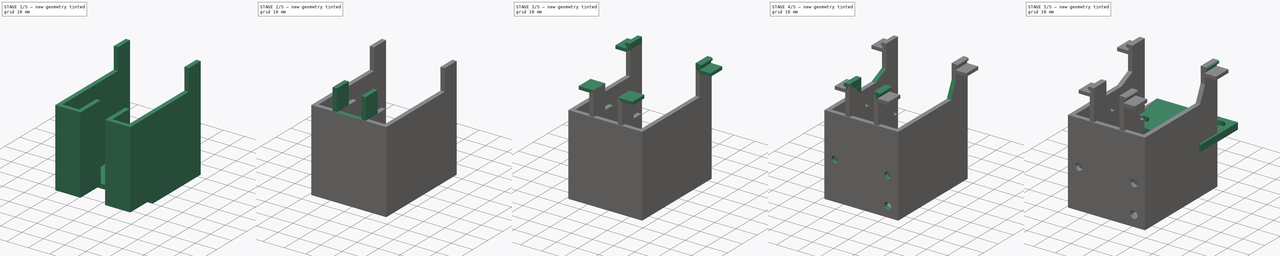
[diagram: build sequence overview — one tinted view per stage of 5, left to right]
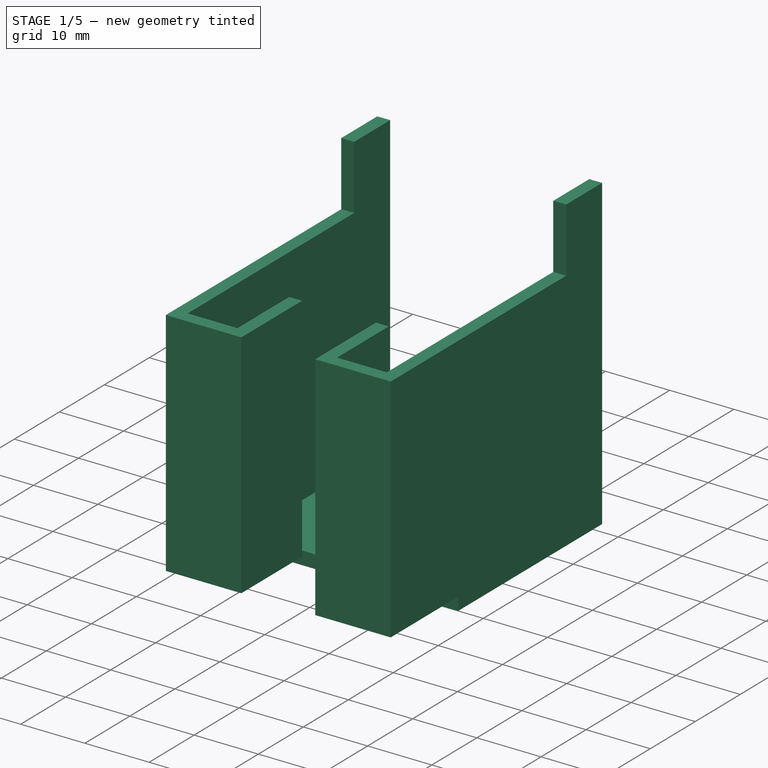
[diagram: stage 1 of 5 — iso view after this stage's code; geometry added in this stage tinted green]
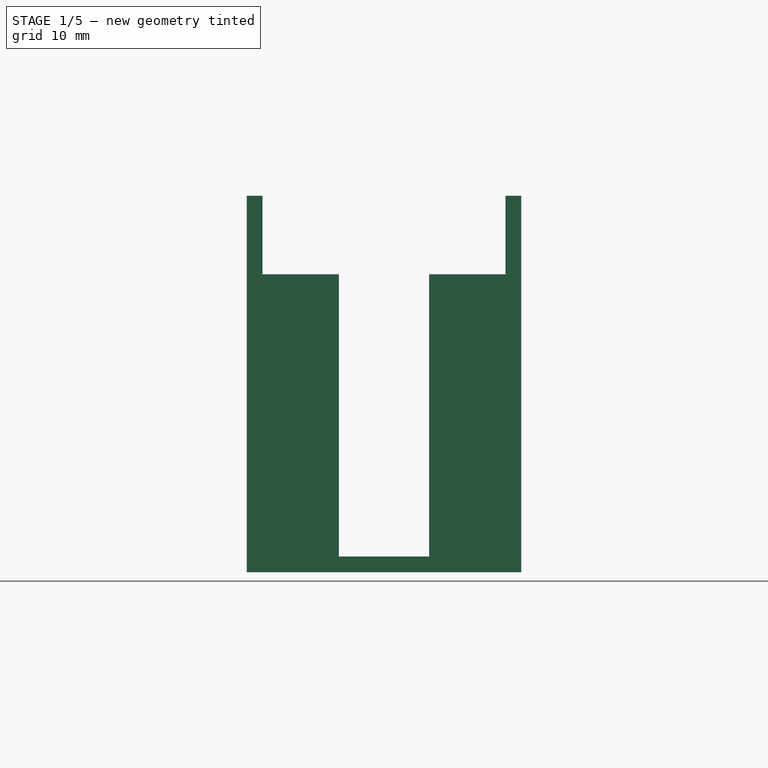
[diagram: stage 1 of 5 — front view after this stage's code; geometry added in this stage tinted green]
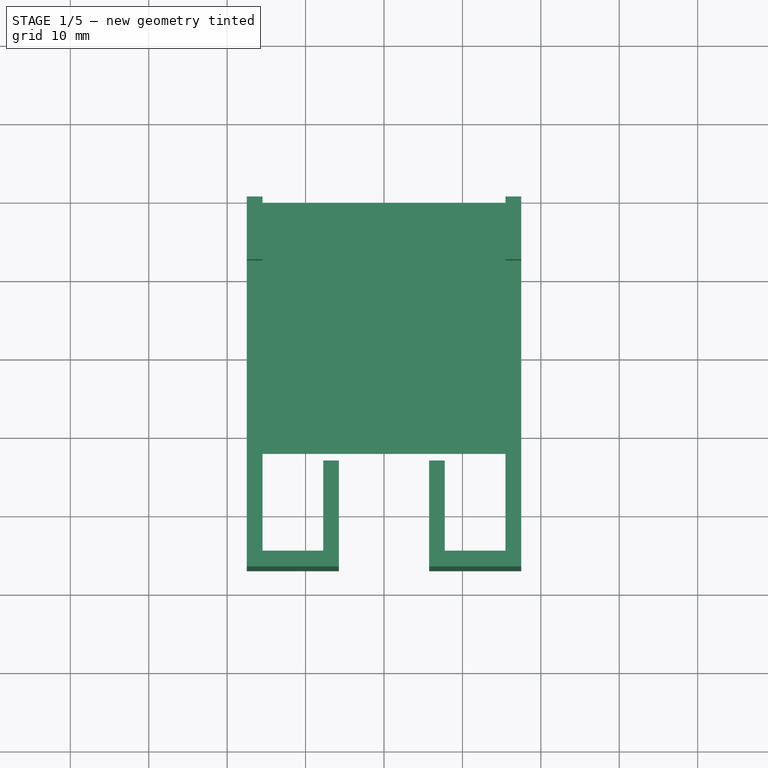
[diagram: stage 1 of 5 — top view after this stage's code; geometry added in this stage tinted green]
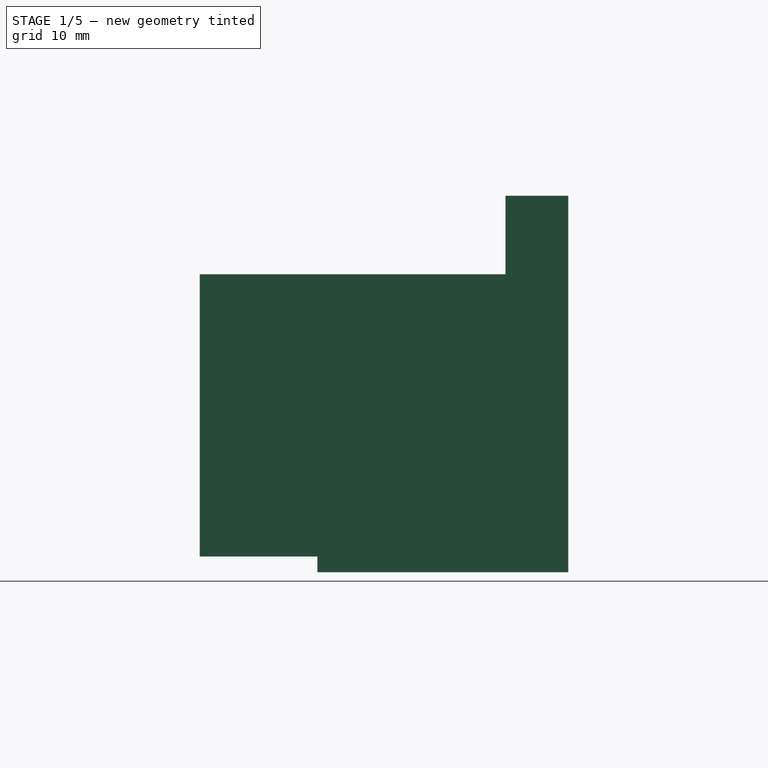
[diagram: stage 1 of 5 — right view after this stage's code; geometry added in this stage tinted green]
FCSTD DOCUMENT  (FreeCAD 1.0R39285 (Git))
Label: Адаптер для датчика
License: All rights reserved
LicenseURL: https://en.wikipedia.org/wiki/All_rights_reserved
objects: Sketcher::SketchObject×17, PartDesign::Pad×14, PartDesign::Body×5, PartDesign::SubShapeBinder×3, PartDesign::Mirrored×2, PartDesign::Pocket×2, PartDesign::Plane×1, PartDesign::Chamfer×1, Measure::MeasureLength×1, App::DocumentObjectGroup×1
note: 98 computed .brp shape members not serialized (recipe doc carries the construction recipe); baked Part::Feature solids carry a one-line shape summary decoded from their .brp

FEATURE [PartDesign::Body] Body001  label="Крепление датчика (Замеры)"
  AllowCompound = false
  Group = -> [Sketch004,Pad,Sketch005,Pad001]
  Origin = -> Origin001
  Placement = pos=(70,0,0) rot=(0,0,1;0rad)
  Tip = -> Pad001
FEATURE [Sketcher::SketchObject] Sketch006  label="Креплене гофры"
  ArcFitTolerance = 1e-06
  AttachmentOffset = pos=(0,0,0) rot=(-1,0,0;3.14159rad)
  AttachmentSupport = -> [XY_Plane002]
  FullyConstrained = true
  MakeInternals = false
  MapMode = 5
  Placement = pos=(0,0,0) rot=(-1,0,0;3.14159rad)
  sketch-geometry (11):
    g0: ArcOfCircle CenterX=0 CenterY=14.5803 CenterZ=0 NormalX=0 NormalY=0 NormalZ=1 AngleXU=0 Radius=5.25 StartAngle=5.78029 EndAngle=9.92767
    g1: LineSegment StartX=-4.6 StartY=12.05 StartZ=0 EndX=-3.4 EndY=10.85 EndZ=0
    g2: LineSegment StartX=4.6 StartY=12.05 StartZ=0 EndX=3.4 EndY=10.85 EndZ=0
    g3: LineSegment StartX=-3.4 StartY=10.85 StartZ=0 EndX=-3.4 EndY=9.5 EndZ=0
    g4: LineSegment StartX=3.4 StartY=10.85 StartZ=0 EndX=3.4 EndY=9.5 EndZ=0
    g5: ArcOfCircle CenterX=-4.6 CenterY=9.5 CenterZ=0 NormalX=0 NormalY=0 NormalZ=1 AngleXU=0 Radius=1.2 StartAngle=4.71239 EndAngle=6.28319
    g6: ArcOfCircle CenterX=4.6 CenterY=9.5 CenterZ=0 NormalX=0 NormalY=0 NormalZ=1 AngleXU=0 Radius=1.2 StartAngle=3.14159 EndAngle=4.71239
    g7: LineSegment [constr] StartX=-4.6 StartY=12.05 StartZ=0 EndX=4.6 EndY=12.05 EndZ=0
    g8: LineSegment StartX=-4.6 StartY=8.3 StartZ=0 EndX=-4.6 EndY=0 EndZ=0
    g9: LineSegment StartX=4.6 StartY=8.3 StartZ=0 EndX=4.6 EndY=0 EndZ=0
    g10: LineSegment StartX=4.6 StartY=0 StartZ=0 EndX=-4.6 EndY=0 EndZ=0
  constraints (32):
    c: Horizontal(g0,g0)
    c: Coincident(g2,g0)
    c: Coincident(g3,g1)
    c: Vertical(g3)
    c: Coincident(g4,g2)
    c: Vertical(g4)
    c: Symmetric(g2,g1,g-2)
    c: PointOnObject(g0,g-2)
    c: Horizontal(g6,g5)
    c: Vertical(g5,g0)
    c: Vertical(g0,g6)
    c: Vertical(g5,g5)
    c: Vertical(g6,g6)
    c: DistanceX(g1,g2) = 6.8
    c: Diameter(g0) = 10.5
    c: DistanceY(g6,g0) = 3.75
    c: Tangent(g5,g3) = 1.5708
    c: Tangent(g6,g4) = -1.5708
    c: Coincident(g1,g0)
    c: Coincident(g7,g0)
    c: Coincident(g7,g0)
    c: Angle(g1,g7) = 0.785398
    c: DistanceX(g1,g1) = 1.2
    c: Coincident(g8,g5)
    c: Vertical(g8)
    c: Coincident(g9,g6)
    c: Vertical(g9)
    c: PointOnObject(g9,g-1)
    c: DistanceY(g8,g8) = 8.3
    c: Equal(g9,g8)
    c: Coincident(g10,g9)
    c: Coincident(g10,g8)
FEATURE [PartDesign::Body] Body002  label="Крепление гофры (Замеры)"
  AllowCompound = false
  Group = -> [Sketch006]
  Origin = -> Origin002
FEATURE [Sketcher::SketchObject] Sketch007
  ArcFitTolerance = 1e-06
  AttachmentSupport = -> [XZ_Plane003]
  FullyConstrained = true
  MakeInternals = false
  MapMode = 5
  Placement = pos=(0,0,0) rot=(1,0,0;1.5708rad)
  sketch-geometry (16):
    g0: LineSegment StartX=-17.5 StartY=19 StartZ=0 EndX=-17.5 EndY=-17 EndZ=0
    g1: LineSegment StartX=-15.5 StartY=-17 StartZ=0 EndX=-15.5 EndY=19 EndZ=0
    g2: LineSegment StartX=-15.5 StartY=19 StartZ=0 EndX=-17.5 EndY=19 EndZ=0
    g3: LineSegment StartX=15.5 StartY=19 StartZ=0 EndX=15.5 EndY=-17 EndZ=0
    g4: LineSegment StartX=17.5 StartY=-17 StartZ=0 EndX=17.5 EndY=19 EndZ=0
    g5: LineSegment StartX=17.5 StartY=19 StartZ=0 EndX=15.5 EndY=19 EndZ=0
    g6: LineSegment StartX=-17.5 StartY=-17 StartZ=0 EndX=-17.5 EndY=-19 EndZ=0
    g7: LineSegment StartX=-17.5 StartY=-19 StartZ=0 EndX=17.5 EndY=-19 EndZ=0
    g8: LineSegment StartX=17.5 StartY=-19 StartZ=0 EndX=17.5 EndY=-17 EndZ=0
    g9: LineSegment StartX=15.5 StartY=-17 StartZ=0 EndX=-15.5 EndY=-17 EndZ=0
    g10: LineSegment StartX=-15.5 StartY=19 StartZ=0 EndX=-15.5 EndY=29 EndZ=0
    g11: LineSegment StartX=-15.5 StartY=29 StartZ=0 EndX=-17.5 EndY=29 EndZ=0
    g12: LineSegment StartX=-17.5 StartY=29 StartZ=0 EndX=-17.5 EndY=19 EndZ=0
    g13: LineSegment StartX=17.5 StartY=19 StartZ=0 EndX=17.5 EndY=29 EndZ=0
    g14: LineSegment StartX=17.5 StartY=29 StartZ=0 EndX=15.5 EndY=29 EndZ=0
    g15: LineSegment StartX=15.5 StartY=29 StartZ=0 EndX=15.5 EndY=19 EndZ=0
  constraints (45):
    c: Coincident(g1,g2)
    c: Coincident(g2,g0)
    c: Vertical(g0)
    c: Vertical(g1)
    c: Horizontal(g2)
    c: Coincident(g4,g5)
    c: Coincident(g5,g3)
    c: Vertical(g3)
    c: Vertical(g4)
    c: Horizontal(g5)
    c: Coincident(g6,g7)
    c: Coincident(g7,g8)
    c: Horizontal(g7)
    c: Vertical(g6)
    c: Vertical(g8)
    c: Horizontal(g9)
    c: Coincident(g9,g1)
    c: Coincident(g9,g3)
    c: Coincident(g4,g8)
    c: Coincident(g6,g0)
    c: Horizontal(g1,g0)
    c: Horizontal(g3,g4)
    c: Equal(g5,g2)
    c: Distance(g9,g7) = 2
    c: DistanceX(g5,g5) = 2
    c: DistanceX(g7,g7) = 35
    c: DistanceY(g0,g0) = 36
    c: Horizontal(g1,g3)
    c: Symmetric(g4,g6,g-1)
    c: Coincident(g1,g10)
    c: Vertical(g10)
    c: Coincident(g10,g11)
    c: Horizontal(g11)
    c: Coincident(g11,g12)
    c: Coincident(g12,g0)
    c: Vertical(g12)
    c: Coincident(g4,g13)
    c: Vertical(g13)
    c: Coincident(g13,g14)
    c: Horizontal(g14)
    c: Coincident(g14,g15)
    c: Coincident(g15,g3)
    c: Vertical(g15)
    c: DistanceY(g10,g10) = 10
    c: Equal(g15,g10)
FEATURE [PartDesign::Pad] Pad002
  Direction = (0,-1,2e-16)
  Length = 32
  Length2 = 10
  Placement = pos=(0,0,0) rot=(1,0,0;1.5708rad)
  Profile = -> Sketch007 [Edge4,Edge16,Edge15,Edge5,Edge6,Edge14,Edge13,Edge8,Edge7,Edge12]
  ReferenceAxis = -> Sketch007 [N_Axis]
  Refine = true
  Suppressed = false
  Type = 0
FEATURE [PartDesign::Pad] Pad003
  BaseFeature = -> Pad002
  Direction = (0,-1,2e-16)
  Length = 8
  Length2 = 10
  Placement = pos=(0,0,0) rot=(1,0,0;1.5708rad)
  Profile = -> Sketch007 [Edge1,Edge16,Edge2,Edge3,Edge12,Edge9,Edge10,Edge11]
  ReferenceAxis = -> Sketch007 [N_Axis]
  Refine = true
  Suppressed = false
  Type = 0
FEATURE [Sketcher::SketchObject] Sketch008
  ArcFitTolerance = 1e-06
  AttachmentSupport = -> [Pad003]
  ExternalGeometry = -> [Pad003]
  FullyConstrained = true
  MakeInternals = false
  MapMode = 5
  Placement = pos=(0,-32,0) rot=(1,0,0;1.5708rad)
  sketch-geometry (4):
    g0: LineSegment StartX=-17.5 StartY=-19 StartZ=0 EndX=17.5 EndY=-19 EndZ=0
    g1: LineSegment StartX=17.5 StartY=-19 StartZ=0 EndX=17.5 EndY=19 EndZ=0
    g2: LineSegment StartX=17.5 StartY=19 StartZ=0 EndX=-17.5 EndY=19 EndZ=0
    g3: LineSegment StartX=-17.5 StartY=19 StartZ=0 EndX=-17.5 EndY=-19 EndZ=0
  constraints (10):
    c: Coincident(g0,g1)
    c: Coincident(g1,g2)
    c: Coincident(g2,g3)
    c: Coincident(g3,g0)
    c: Horizontal(g0)
    c: Horizontal(g2)
    c: Vertical(g1)
    c: Vertical(g3)
    c: Coincident(g0,g-4)
    c: Coincident(g1,g-3)
FEATURE [Sketcher::SketchObject] Sketch011
  ArcFitTolerance = 1e-06
  AttachmentSupport = -> [Pad003]
  ExternalGeometry = -> [Pad003]
  FullyConstrained = true
  MakeInternals = false
  MapMode = 5
  Placement = pos=(0,4.2e-15,19) rot=(0,0,1;3.14159rad)
  sketch-geometry (12):
    g0: LineSegment StartX=-7.75 StartY=45 StartZ=0 EndX=-7.75 EndY=47 EndZ=0
    g1: LineSegment StartX=7.75 StartY=45 StartZ=0 EndX=7.75 EndY=47 EndZ=0
    g2: LineSegment StartX=17.5 StartY=32 StartZ=0 EndX=15.5 EndY=32 EndZ=0
    g3: LineSegment StartX=-15.5 StartY=32 StartZ=0 EndX=-17.5 EndY=32 EndZ=0
    g4: LineSegment StartX=-17.5 StartY=32 StartZ=0 EndX=-17.5 EndY=47 EndZ=0
    g5: LineSegment StartX=-17.5 StartY=47 StartZ=0 EndX=-7.75 EndY=47 EndZ=0
    g6: LineSegment StartX=17.5 StartY=32 StartZ=0 EndX=17.5 EndY=47 EndZ=0
    g7: LineSegment StartX=17.5 StartY=47 StartZ=0 EndX=7.75 EndY=47 EndZ=0
    g8: LineSegment StartX=-15.5 StartY=32 StartZ=0 EndX=-15.5 EndY=45 EndZ=0
    g9: LineSegment StartX=-15.5 StartY=45 StartZ=0 EndX=-7.75 EndY=45 EndZ=0
    g10: LineSegment StartX=15.5 StartY=32 StartZ=0 EndX=15.5 EndY=45 EndZ=0
    g11: LineSegment StartX=15.5 StartY=45 StartZ=0 EndX=7.75 EndY=45 EndZ=0
  constraints (31):
    c: Vertical(g0)
    c: Vertical(g1)
    c: Horizontal(g1,g0)
    c: DistanceX(g0,g1) = 15.5
    c: Coincident(g3,g4)
    c: Vertical(g4)
    c: Coincident(g4,g5)
    c: Coincident(g5,g0)
    c: Coincident(g-4,g6) = -1.5708
    c: Coincident(g6,g7)
    c: Horizontal(g5)
    c: Coincident(g7,g1)
    c: Vertical(g6)
    c: Horizontal(g7)
    c: Coincident(g8,g9)
    c: Coincident(g10,g11)
    c: Vertical(g8)
    c: Horizontal(g9)
    c: Vertical(g10)
    c: Coincident(g11,g1)
    c: Coincident(g0,g9)
    c: Coincident(g8,g3)
    c: Coincident(g2,g10)
    c: Coincident(g6,g2)
    c: Coincident(g3,g-3)
    c: Equal(g3,g0)
    c: Horizontal(g11)
    c: Coincident(g-3,g3)
    c: DistanceY(g8,g8) = 13
    c: Symmetric(g0,g1,g-2)
    c: Coincident(g2,g-4)
FEATURE [PartDesign::Pad] Pad006
  BaseFeature = -> Pad003
  Direction = (0,0,1)
  Length = 36
  Length2 = 10
  Placement = pos=(0,0,0) rot=(1,0,0;1.5708rad)
  Profile = -> Sketch011
  ReferenceAxis = -> Sketch011 [N_Axis]
  Refine = true
  Reversed = true
  Suppressed = false
  Type = 0
FEATURE [PartDesign::Plane] DatumPlane
  AttachmentSupport = -> [Pad006]
  Length = 60.775
  MapMode = 5
  Placement = pos=(0,-45,0) rot=(-1,0,0;1.5708rad)
  ResizeMode = 0
  Width = 68.825
FEATURE [Sketcher::SketchObject] Sketch012
  ArcFitTolerance = 1e-06
  AttachmentSupport = -> [DatumPlane]
  ExternalGeometry = -> [Pad006]
  FullyConstrained = true
  MakeInternals = false
  MapMode = 5
  Placement = pos=(0,-45,0) rot=(-1,0,0;1.5708rad)
  sketch-geometry (8):
    g0: LineSegment StartX=-7.75 StartY=-19 StartZ=0 EndX=-5.75 EndY=-19 EndZ=0
    g1: LineSegment StartX=-5.75 StartY=-19 StartZ=0 EndX=-5.75 EndY=17 EndZ=0
    g2: LineSegment StartX=-5.75 StartY=17 StartZ=0 EndX=-7.75 EndY=17 EndZ=0
    g3: LineSegment StartX=-7.75 StartY=17 StartZ=0 EndX=-7.75 EndY=-19 EndZ=0
    g4: LineSegment StartX=7.75 StartY=17 StartZ=0 EndX=5.75 EndY=17 EndZ=0
    g5: LineSegment StartX=5.75 StartY=17 StartZ=0 EndX=5.75 EndY=-19 EndZ=0
    g6: LineSegment StartX=5.75 StartY=-19 StartZ=0 EndX=7.75 EndY=-19 EndZ=0
    g7: LineSegment StartX=7.75 StartY=-19 StartZ=0 EndX=7.75 EndY=17 EndZ=0
  constraints (20):
    c: Coincident(g0,g1)
    c: Coincident(g1,g2)
    c: Coincident(g2,g3)
    c: Horizontal(g0)
    c: Horizontal(g2)
    c: Vertical(g1)
    c: Coincident(g0,g-3)
    c: Coincident(g-3,g2)
    c: DistanceX(g2,g2) = 2
    c: Coincident(g4,g5)
    c: Coincident(g5,g6)
    c: Coincident(g6,g7)
    c: Coincident(g7,g4)
    c: Horizontal(g4)
    c: Horizontal(g6)
    c: Vertical(g5)
    c: Coincident(g4,g-4)
    c: Coincident(g-4,g6)
    c: Equal(g6,g0)
    c: Coincident(g3,g0)
FEATURE [PartDesign::Pad] Pad007
  BaseFeature = -> Pad006
  Direction = (0,1,2e-16)
  Length = 11.5
  Length2 = 2
  Placement = pos=(0,0,0) rot=(1,0,0;1.5708rad)
  Profile = -> Sketch012
  ReferenceAxis = -> Sketch012 [N_Axis]
  Refine = true
  Suppressed = false
  Type = 4
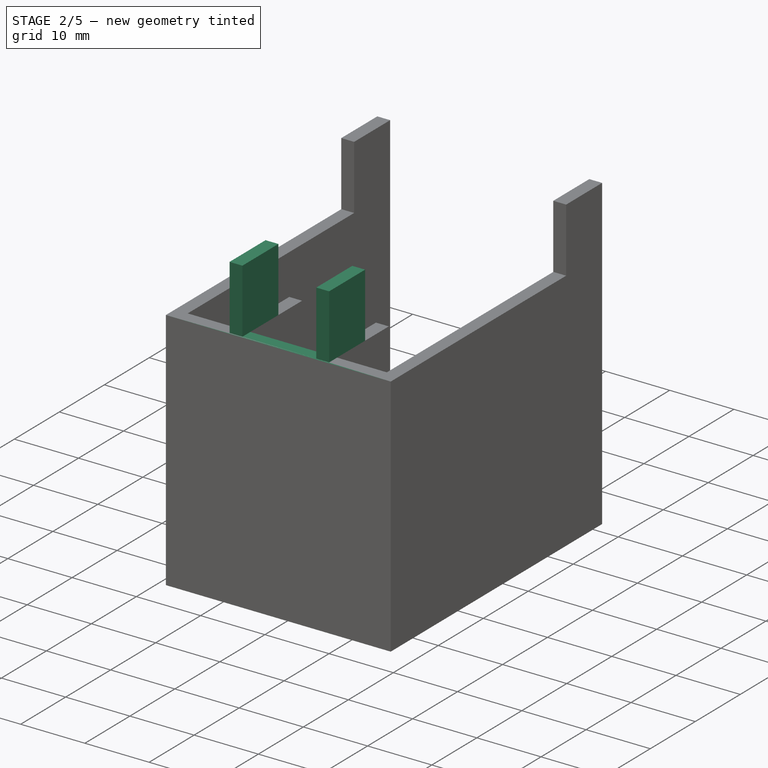
[diagram: stage 2 of 5 — iso view after this stage's code; geometry added in this stage tinted green]
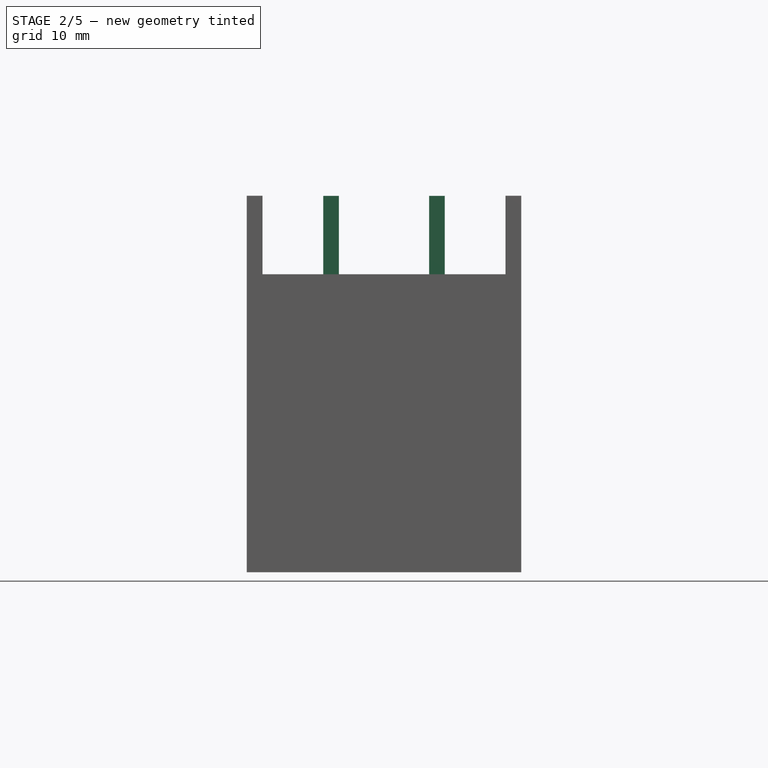
[diagram: stage 2 of 5 — front view after this stage's code; geometry added in this stage tinted green]
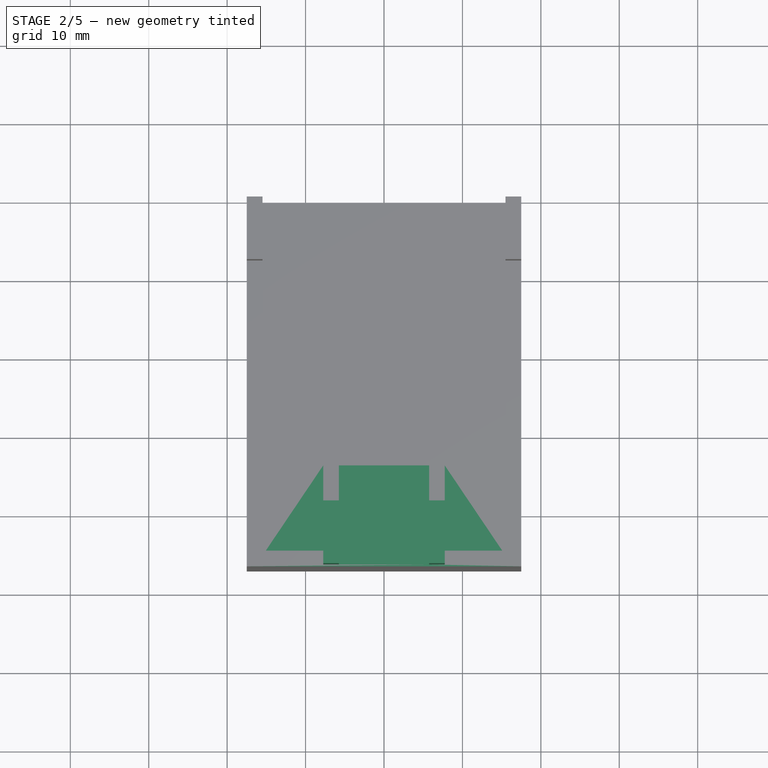
[diagram: stage 2 of 5 — top view after this stage's code; geometry added in this stage tinted green]
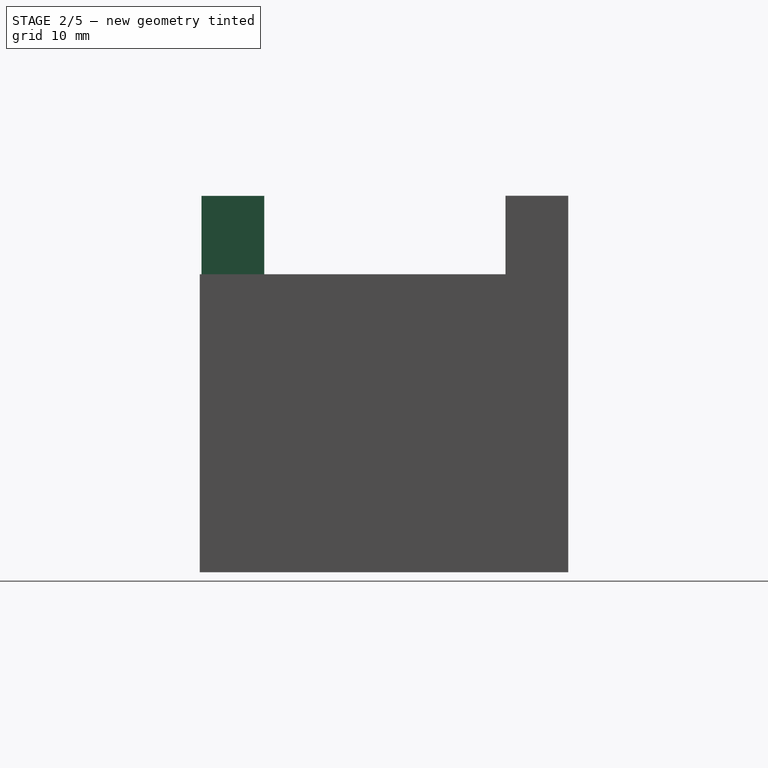
[diagram: stage 2 of 5 — right view after this stage's code; geometry added in this stage tinted green]
FEATURE [Sketcher::SketchObject] Sketch013
  ArcFitTolerance = 1e-06
  AttachmentSupport = -> [Pad007]
  ExternalGeometry = -> [Pad007]
  FullyConstrained = true
  MakeInternals = false
  MapMode = 5
  Placement = pos=(0,1.6e-15,19) rot=(0,0,1;3.14159rad)
  sketch-geometry (4):
    g0: LineSegment StartX=-5.75 StartY=47 StartZ=0 EndX=-5.75 EndY=45 EndZ=0
    g1: LineSegment StartX=-5.75 StartY=45 StartZ=0 EndX=5.75 EndY=45 EndZ=0
    g2: LineSegment StartX=5.75 StartY=45 StartZ=0 EndX=5.75 EndY=47 EndZ=0
    g3: LineSegment StartX=5.75 StartY=47 StartZ=0 EndX=-5.75 EndY=47 EndZ=0
  constraints (10):
    c: Coincident(g0,g1)
    c: Coincident(g1,g2)
    c: Coincident(g2,g3)
    c: Coincident(g3,g0)
    c: Vertical(g0)
    c: Vertical(g2)
    c: Horizontal(g1)
    c: Coincident(g0,g-4)
    c: Horizontal(g0,g-5)
    c: Coincident(g2,g-3)
FEATURE [PartDesign::Pad] Pad008
  BaseFeature = -> Pad007
  Direction = (0,0,1)
  Length = 10
  Length2 = 10
  Placement = pos=(0,0,0) rot=(1,0,0;1.5708rad)
  Profile = -> Sketch013
  ReferenceAxis = -> Sketch013 [N_Axis]
  Refine = true
  Suppressed = false
  Type = 3
  UpToFace = -> Pad007 [Face22]
FEATURE [PartDesign::Pad] Pad009
  BaseFeature = -> Pad008
  Direction = (0,-1,0)
  Length = 15
  Length2 = 10
  Placement = pos=(0,0,0) rot=(1,0,0;1.5708rad)
  Profile = -> Pad008 [Face10]
  Refine = true
  Suppressed = false
  Type = 0
FEATURE [Sketcher::SketchObject] Sketch014
  ArcFitTolerance = 1e-06
  AttachmentSupport = -> [Pad009]
  ExternalGeometry = -> [Pad009]
  FullyConstrained = true
  MakeInternals = false
  MapMode = 5
  Placement = pos=(7.75,0,4e-16) rot=(0.707107,0,0.707107;3.14159rad)
  sketch-geometry (4):
    g0: LineSegment StartX=28.9949 StartY=46.765 StartZ=0 EndX=14.4949 EndY=46.765 EndZ=0
    g1: LineSegment StartX=14.4949 StartY=46.765 StartZ=0 EndX=14.4949 EndY=38.765 EndZ=0
    g2: LineSegment StartX=14.4949 StartY=38.765 StartZ=0 EndX=28.9949 EndY=38.765 EndZ=0
    g3: LineSegment StartX=28.9949 StartY=38.765 StartZ=0 EndX=28.9949 EndY=46.765 EndZ=0
  constraints (11):
    c: Coincident(g0,g1)
    c: Coincident(g1,g2)
    c: Coincident(g2,g3)
    c: Coincident(g3,g0)
    c: Horizontal(g0)
    c: Horizontal(g2)
    c: Vertical(g1)
    c: Vertical(g3)
    c: DistanceX(g0,g0) = 14.5
    c: DistanceY(g1,g1) = 8
    c: Block(g1)
FEATURE [PartDesign::Pad] Pad010
  BaseFeature = -> Pad009
  Direction = (1,0,-2e-16)
  Length = 2
  Length2 = 10
  Placement = pos=(0,0,0) rot=(1,0,0;1.5708rad)
  Profile = -> Sketch014
  ReferenceAxis = -> Sketch014 [N_Axis]
  Refine = true
  Reversed = true
  Suppressed = false
  Type = 3
  UpToFace = -> Pad009 [Face8]
FEATURE [PartDesign::Mirrored] Mirrored
  BaseFeature = -> Pad010
  MirrorPlane = -> YZ_Plane003
  Originals = -> [Pad010]
  Placement = pos=(0,0,0) rot=(1,0,0;1.5708rad)
  Refine = true
  Suppressed = false
  TransformMode = 0
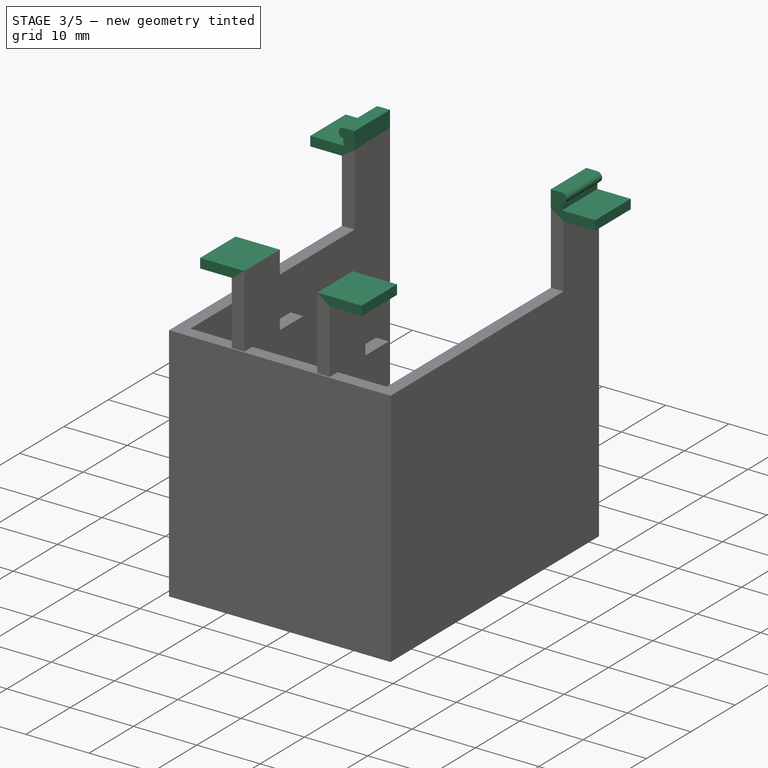
[diagram: stage 3 of 5 — iso view after this stage's code; geometry added in this stage tinted green]
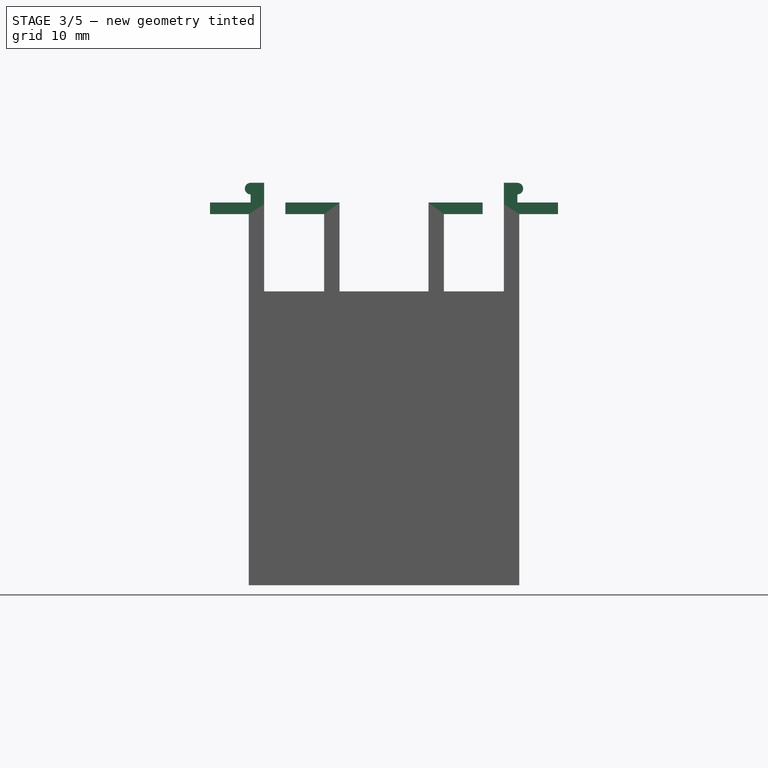
[diagram: stage 3 of 5 — front view after this stage's code; geometry added in this stage tinted green]
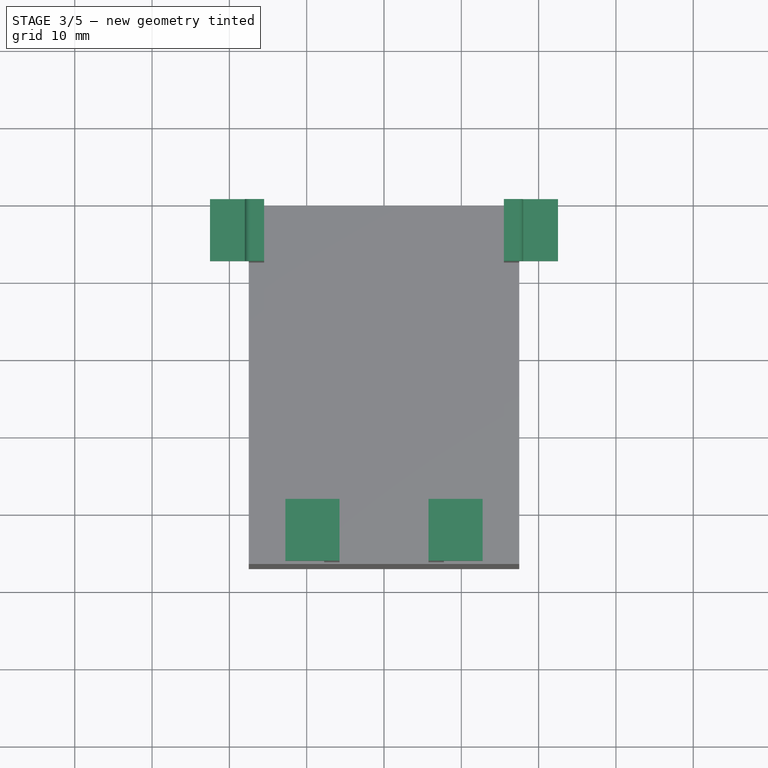
[diagram: stage 3 of 5 — top view after this stage's code; geometry added in this stage tinted green]
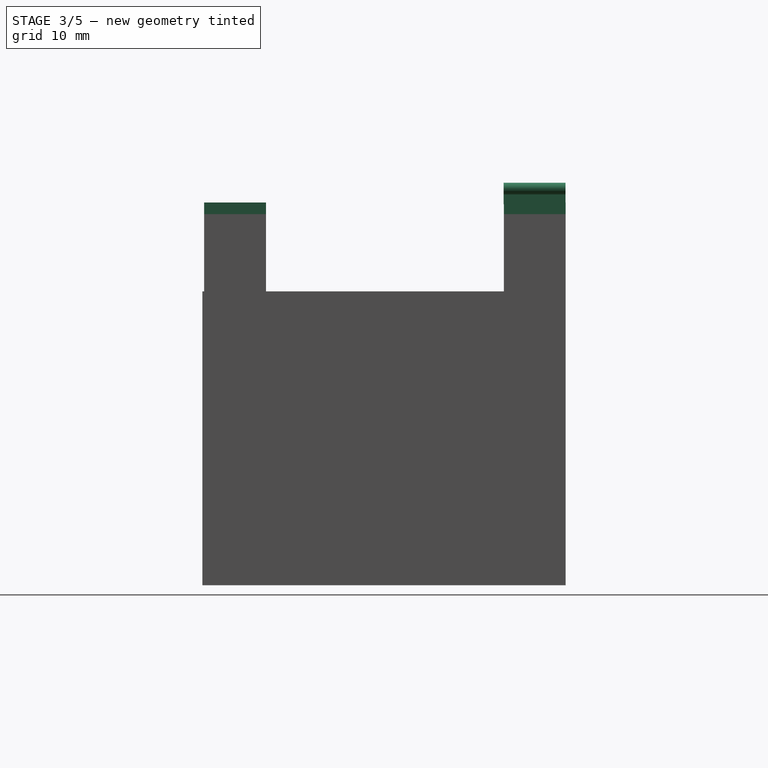
[diagram: stage 3 of 5 — right view after this stage's code; geometry added in this stage tinted green]
FEATURE [Sketcher::SketchObject] Sketch015
  ArcFitTolerance = 1e-06
  AttachmentSupport = -> [Mirrored]
  ExternalGeometry = -> [Mirrored]
  FullyConstrained = true
  MakeInternals = false
  MapMode = 5
  Placement = pos=(0,6.4e-15,29) rot=(0,0,1;3.14159rad)
  sketch-geometry (16):
    g0: LineSegment StartX=-22.5 StartY=4.4e-15 StartZ=0 EndX=-15.5 EndY=4.4e-15 EndZ=0
    g1: LineSegment StartX=-15.5 StartY=4.4e-15 StartZ=0 EndX=-15.5 EndY=8 EndZ=0
    g2: LineSegment StartX=-15.5 StartY=8 StartZ=0 EndX=-22.5 EndY=8 EndZ=0
    g3: LineSegment StartX=-22.5 StartY=8 StartZ=0 EndX=-22.5 EndY=4.4e-15 EndZ=0
    g4: LineSegment StartX=-12.75 StartY=38.765 StartZ=0 EndX=-5.75 EndY=38.765 EndZ=0
    g5: LineSegment StartX=-5.75 StartY=38.765 StartZ=0 EndX=-5.75 EndY=46.765 EndZ=0
    g6: LineSegment StartX=-5.75 StartY=46.765 StartZ=0 EndX=-12.75 EndY=46.765 EndZ=0
    g7: LineSegment StartX=-12.75 StartY=46.765 StartZ=0 EndX=-12.75 EndY=38.765 EndZ=0
    g8: LineSegment StartX=12.75 StartY=46.765 StartZ=0 EndX=5.75 EndY=46.765 EndZ=0
    g9: LineSegment StartX=5.75 StartY=46.765 StartZ=0 EndX=5.75 EndY=38.765 EndZ=0
    g10: LineSegment StartX=5.75 StartY=38.765 StartZ=0 EndX=12.75 EndY=38.765 EndZ=0
    g11: LineSegment StartX=12.75 StartY=38.765 StartZ=0 EndX=12.75 EndY=46.765 EndZ=0
    g12: LineSegment StartX=15.5 StartY=4.4e-15 StartZ=0 EndX=22.5 EndY=4.4e-15 EndZ=0
    g13: LineSegment StartX=22.5 StartY=4.4e-15 StartZ=0 EndX=22.5 EndY=8 EndZ=0
    g14: LineSegment StartX=22.5 StartY=8 StartZ=0 EndX=15.5 EndY=8 EndZ=0
    g15: LineSegment StartX=15.5 StartY=8 StartZ=0 EndX=15.5 EndY=4.4e-15 EndZ=0
  constraints (44):
    c: Coincident(g0,g1)
    c: Coincident(g1,g2)
    c: Coincident(g2,g3)
    c: Coincident(g3,g0)
    c: Horizontal(g0)
    c: Horizontal(g2)
    c: Vertical(g1)
    c: Vertical(g3)
    c: Coincident(g4,g5)
    c: Coincident(g5,g6)
    c: Coincident(g6,g7)
    c: Coincident(g7,g4)
    c: Horizontal(g4)
    c: Horizontal(g6)
    c: Vertical(g5)
    c: Vertical(g7)
    c: Coincident(g8,g9)
    c: Coincident(g9,g10)
    c: Coincident(g10,g11)
    c: Coincident(g11,g8)
    c: Horizontal(g8)
    c: Horizontal(g10)
    c: Vertical(g9)
    c: Vertical(g11)
    c: Coincident(g12,g13)
    c: Coincident(g14,g15)
    c: Coincident(g15,g12)
    c: Horizontal(g12)
    c: Horizontal(g14)
    c: Vertical(g13)
    c: Vertical(g15)
    c: Equal(g12,g8)
    c: Equal(g8,g4)
    c: Equal(g4,g0)
    c: Coincident(g0,g-6)
    c: Coincident(g4,g-3)
    c: Coincident(g9,g-4)
    c: Coincident(g13,g14)
    c: Coincident(g12,g-5)
    c: DistanceX(g0,g0) = 7
    c: DistanceY(g1,g1) = 8
    c: Equal(g1,g15)
    c: Equal(g15,g9)
    c: Equal(g9,g5)
FEATURE [PartDesign::Pad] Pad011
  BaseFeature = -> Mirrored
  Direction = (0,0,1)
  Length = 1.5
  Length2 = 10
  Placement = pos=(0,0,0) rot=(1,0,0;1.5708rad)
  Profile = -> Sketch015
  ReferenceAxis = -> Sketch015 [N_Axis]
  Refine = true
  Suppressed = false
  Type = 0
FEATURE [Sketcher::SketchObject] Sketch016
  ArcFitTolerance = 1e-06
  AttachmentSupport = -> [Pad011]
  ExternalGeometry = -> [Pad011]
  FullyConstrained = true
  MakeInternals = false
  MapMode = 5
  Placement = pos=(-1.29e-14,0,28.9949) rot=(0,0,1;3.14159rad)
  sketch-geometry (8):
    g0: LineSegment StartX=-5.75 StartY=38.765 StartZ=0 EndX=-5.75 EndY=46.765 EndZ=0
    g1: LineSegment StartX=-5.75 StartY=46.765 StartZ=0 EndX=-12.75 EndY=46.765 EndZ=0
    g2: LineSegment StartX=-12.75 StartY=46.765 StartZ=0 EndX=-12.75 EndY=38.765 EndZ=0
    g3: LineSegment StartX=-12.75 StartY=38.765 StartZ=0 EndX=-5.75 EndY=38.765 EndZ=0
    g4: LineSegment StartX=5.75 StartY=38.765 StartZ=0 EndX=12.75 EndY=38.765 EndZ=0
    g5: LineSegment StartX=12.75 StartY=38.765 StartZ=0 EndX=12.75 EndY=46.765 EndZ=0
    g6: LineSegment StartX=12.75 StartY=46.765 StartZ=0 EndX=5.75 EndY=46.765 EndZ=0
    g7: LineSegment StartX=5.75 StartY=46.765 StartZ=0 EndX=5.75 EndY=38.765 EndZ=0
  constraints (22):
    c: Coincident(g0,g1)
    c: Coincident(g1,g2)
    c: Coincident(g2,g3)
    c: Coincident(g3,g0)
    c: Vertical(g0)
    c: Vertical(g2)
    c: Horizontal(g1)
    c: Horizontal(g3)
    c: Coincident(g0,g-3)
    c: Coincident(g4,g5)
    c: Coincident(g5,g6)
    c: Coincident(g6,g7)
    c: Coincident(g7,g4)
    c: Horizontal(g4)
    c: Horizontal(g6)
    c: Vertical(g5)
    c: Vertical(g7)
    c: Coincident(g4,g-4)
    c: DistanceX(g4,g4) = 7
    c: DistanceY(g5,g5) = 8
    c: Equal(g5,g0)
    c: Equal(g4,g3)
FEATURE [PartDesign::Pad] Pad012
  BaseFeature = -> Pad011
  Direction = (0,0,1)
  Length = 1.5
  Length2 = 10
  Placement = pos=(0,0,0) rot=(1,0,0;1.5708rad)
  Profile = -> Sketch016
  ReferenceAxis = -> Sketch016 [N_Axis]
  Refine = true
  Suppressed = false
  Type = 0
FEATURE [PartDesign::SubShapeBinder] Binder
  BindCopyOnChange = 0
  BindMode = 0
  ClaimChildren = false
  Context = -> Body003 [Binder.]
  Fuse = false
  MakeFace = true
  OffsetFill = false
  OffsetIntersection = false
  OffsetJoinType = 0
  OffsetOpenResult = false
  PartialLoad = false
  Placement = pos=(0,0,4.3) rot=(0,0,1;0rad)
  Refine = true
  Relative = true
  Support = -> [Body[Sketch003.]]
  _Version = 2
FEATURE [PartDesign::Pad] Pad013
  BaseFeature = -> Pad012
  Direction = (0,1,-6e-16)
  Length = 8
  Length2 = 10
  Placement = pos=(0,0,0) rot=(1,0,0;1.5708rad)
  Profile = -> Binder
  Refine = true
  Suppressed = false
  Type = 0
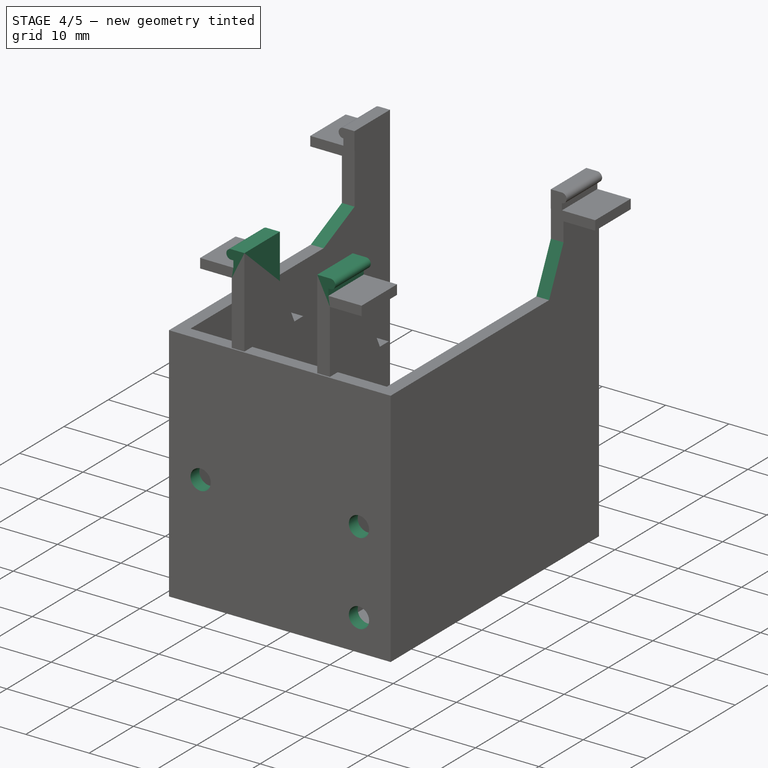
[diagram: stage 4 of 5 — iso view after this stage's code; geometry added in this stage tinted green]
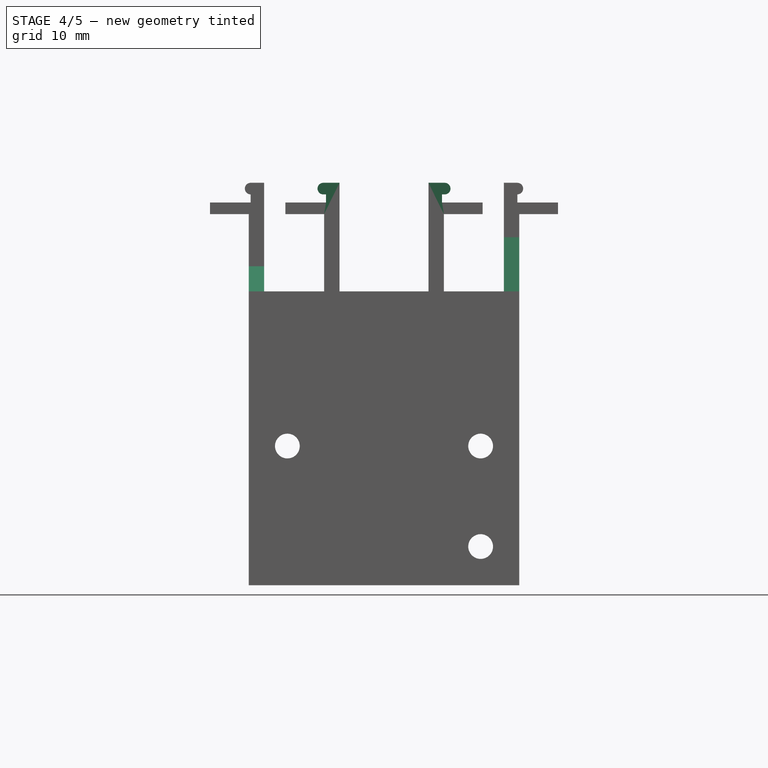
[diagram: stage 4 of 5 — front view after this stage's code; geometry added in this stage tinted green]
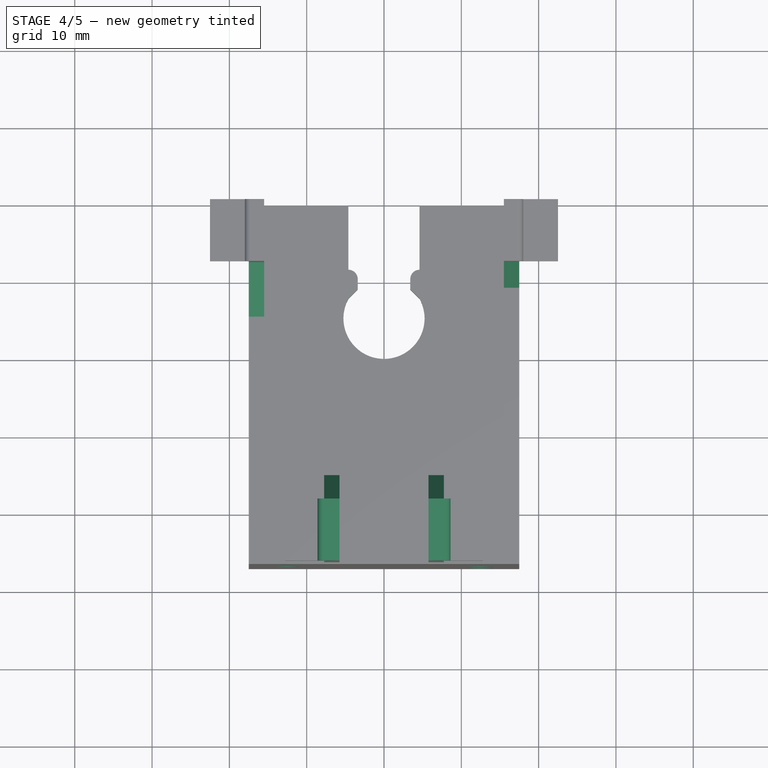
[diagram: stage 4 of 5 — top view after this stage's code; geometry added in this stage tinted green]
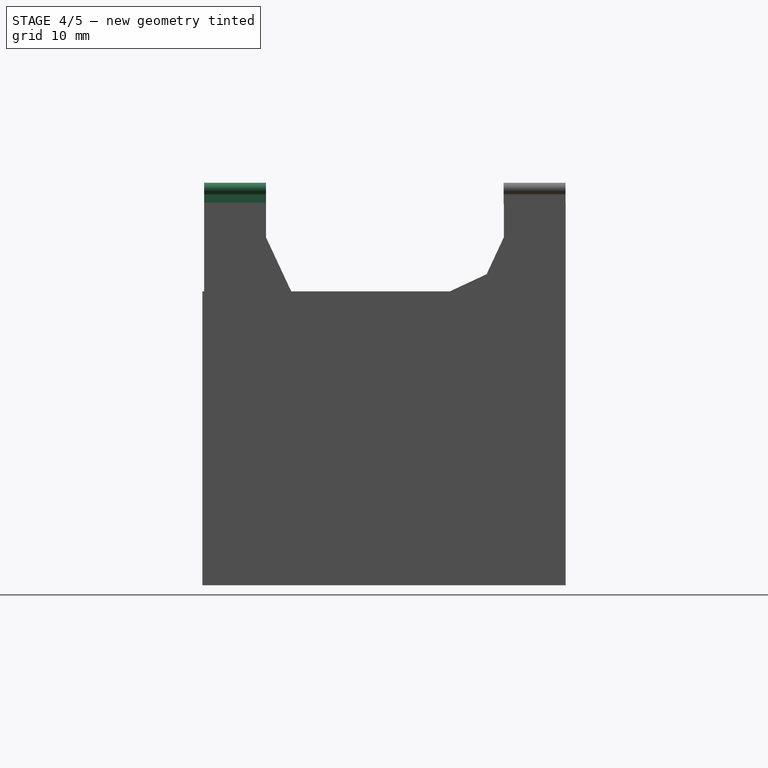
[diagram: stage 4 of 5 — right view after this stage's code; geometry added in this stage tinted green]
FEATURE [PartDesign::SubShapeBinder] Binder001
  BindCopyOnChange = 0
  BindMode = 0
  ClaimChildren = false
  Context = -> Body003 [Binder001.]
  Fuse = false
  MakeFace = true
  OffsetFill = false
  OffsetIntersection = false
  OffsetJoinType = 0
  OffsetOpenResult = false
  PartialLoad = false
  Placement = pos=(0,0,4.3) rot=(0,0,1;0rad)
  Refine = true
  Relative = true
  Support = -> [Body[Sketch002.]]
  _Version = 2
FEATURE [Sketcher::SketchObject] Sketch017
  ArcFitTolerance = 1e-06
  AttachmentSupport = -> [Pad013]
  ExternalGeometry = -> [Binder001]
  FullyConstrained = false
  MakeInternals = false
  MapMode = 5
  Placement = pos=(0,-46.765,1.4e-15) rot=(1,0,0;1.5708rad)
  sketch-geometry (14):
    g0: LineSegment StartX=-7.5 StartY=33.05 StartZ=0 EndX=-5.75 EndY=33.05 EndZ=0
    g1: LineSegment StartX=-5.75 StartY=33.05 StartZ=0 EndX=-5.75 EndY=25.3024 EndZ=0
    g2: LineSegment StartX=-5.75 StartY=25.3024 StartZ=0 EndX=-7.5 EndY=25.3024 EndZ=0
    g3: LineSegment StartX=-7.5 StartY=25.3024 StartZ=0 EndX=-7.5 EndY=31.55 EndZ=0
    g4: LineSegment StartX=7.5 StartY=33.05 StartZ=0 EndX=5.75 EndY=33.05 EndZ=0
    g5: LineSegment StartX=5.75 StartY=33.05 StartZ=0 EndX=5.75 EndY=24.5016 EndZ=0
    g6: LineSegment StartX=5.75 StartY=24.5016 StartZ=0 EndX=7.5 EndY=24.5016 EndZ=0
    g7: LineSegment StartX=7.5 StartY=24.5016 StartZ=0 EndX=7.5 EndY=31.55 EndZ=0
    g8: ArcOfCircle CenterX=7.85 CenterY=32.3 CenterZ=0 NormalX=0 NormalY=0 NormalZ=1 AngleXU=0 Radius=0.75 StartAngle=4.71239 EndAngle=7.85398
    g9: LineSegment StartX=7.85 StartY=31.55 StartZ=0 EndX=7.5 EndY=31.55 EndZ=0
    g10: LineSegment StartX=7.85 StartY=33.05 StartZ=0 EndX=7.5 EndY=33.05 EndZ=0
    g11: ArcOfCircle CenterX=-7.85 CenterY=32.3 CenterZ=0 NormalX=0 NormalY=0 NormalZ=1 AngleXU=0 Radius=0.75 StartAngle=1.5708 EndAngle=4.71239
    g12: LineSegment StartX=-7.5 StartY=33.05 StartZ=0 EndX=-7.85 EndY=33.05 EndZ=0
    g13: LineSegment StartX=-7.5 StartY=31.55 StartZ=0 EndX=-7.85 EndY=31.55 EndZ=0
  constraints (36):
    c: Coincident(g-9,g0)
    c: Horizontal(g0)
    c: Coincident(g0,g1)
    c: Vertical(g1)
    c: Coincident(g4,g5)
    c: Coincident(g2,g1)
    c: PointOnObject(g-10,g1)
    c: Coincident(g2,g3)
    c: Vertical(g3)
    c: Coincident(g7,g6)
    c: Coincident(g5,g6)
    c: Horizontal(g6)
    c: Vertical(g7)
    c: PointOnObject(g-6,g5)
    c: Coincident(g9,g8)
    c: Coincident(g9,g7)
    c: Coincident(g10,g8)
    c: Coincident(g10,g4)
    c: Horizontal(g10)
    c: Horizontal(g9)
    c: Coincident(g-5,g7)
    c: Coincident(g4,g-3)
    c: Vertical(g8,g8)
    c: Vertical(g8,g8)
    c: DistanceX(g10,g10) = 0.35
    c: Coincident(g0,g12)
    c: Coincident(g12,g11)
    c: Coincident(g3,g13)
    c: Coincident(g13,g11)
    c: Horizontal(g12)
    c: Horizontal(g13)
    c: Equal(g12,g10)
    c: Coincident(g-8,g3)
    c: Vertical(g11,g11)
    c: Vertical(g11,g11)
    c: Coincident(g4,g-4)
FEATURE [PartDesign::Pad] Pad014
  BaseFeature = -> Pad013
  Direction = (0,-1,2e-16)
  Length = 8
  Length2 = 10
  Placement = pos=(0,0,0) rot=(1,0,0;1.5708rad)
  Profile = -> Sketch017
  ReferenceAxis = -> Sketch017 [N_Axis]
  Refine = true
  Reversed = true
  Suppressed = false
  Type = 0
FEATURE [PartDesign::SubShapeBinder] Binder002
  BindCopyOnChange = 0
  BindMode = 0
  ClaimChildren = false
  Context = -> Body003 [Binder002.]
  Fuse = false
  MakeFace = true
  OffsetFill = false
  OffsetIntersection = false
  OffsetJoinType = 0
  OffsetOpenResult = false
  PartialLoad = false
  Refine = true
  Relative = true
  Support = -> [Body002[Sketch006.]]
  _Version = 2
FEATURE [PartDesign::Pocket] Pocket
  BaseFeature = -> Pad014
  Direction = (0,0,-1)
  Length = 5
  Length2 = 5
  Placement = pos=(0,0,0) rot=(1,0,0;1.5708rad)
  Profile = -> Binder002
  Refine = true
  Suppressed = false
  Type = 1
FEATURE [PartDesign::Chamfer] Chamfer
  Angle = 25
  Base = -> Pocket [Edge5,Edge26,Edge173,Edge187]
  BaseFeature = -> Pocket
  ChamferType = 2
  FlipDirection = false
  Placement = pos=(0,0,0) rot=(1,0,0;1.5708rad)
  Refine = true
  Size = 7
  Size2 = 1
  SupportTransform = false
  Suppressed = false
  UseAllEdges = false
FEATURE [Sketcher::SketchObject] Sketch018
  ArcFitTolerance = 1e-06
  FullyConstrained = false
  MakeInternals = false
  MapMode = 5
  Placement = pos=(0,-47,-7.5) rot=(-1,0,0;1.5708rad)
  sketch-geometry (3):
    g0: Circle CenterX=12.5 CenterY=-6.5 CenterZ=0 NormalX=0 NormalY=0 NormalZ=1 AngleXU=0 Radius=1.6
    g1: Circle CenterX=12.5 CenterY=6.5 CenterZ=0 NormalX=0 NormalY=0 NormalZ=1 AngleXU=0 Radius=1.6
    g2: Circle CenterX=-12.5 CenterY=-6.5 CenterZ=0 NormalX=0 NormalY=0 NormalZ=1 AngleXU=0 Radius=1.6
  constraints (7):
    c: Equal(g2,g0)
    c: Equal(g0,g1)
    c: Vertical(g1,g0)
    c: Distance(g0,g1) = 9.8
    c: Distance(g0,g2) = 21.8
    c: Diameter(g2) = 3.2
    c: Symmetric(g0,g2,g-2)
FEATURE [PartDesign::Pocket] Pocket001
  BaseFeature = -> Chamfer
  Direction = (0,-1,-2e-16)
  Length = 5
  Length2 = 5
  Placement = pos=(0,0,0) rot=(1,0,0;1.5708rad)
  Profile = -> Sketch018
  ReferenceAxis = -> Sketch018 [N_Axis]
  Refine = true
  Reversed = true
  Suppressed = false
  Type = 0
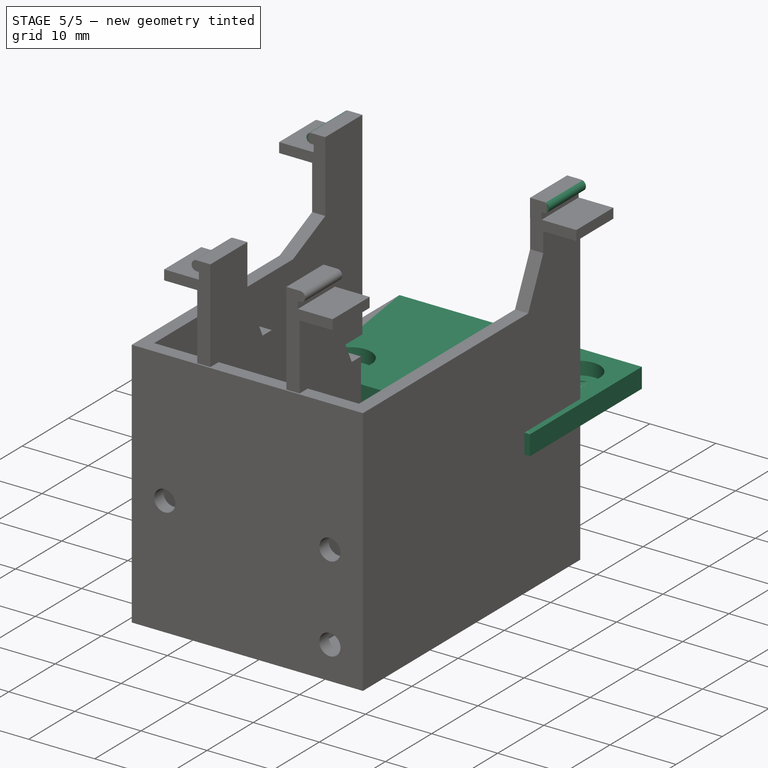
[diagram: stage 5 of 5 — iso view after this stage's code; geometry added in this stage tinted green]
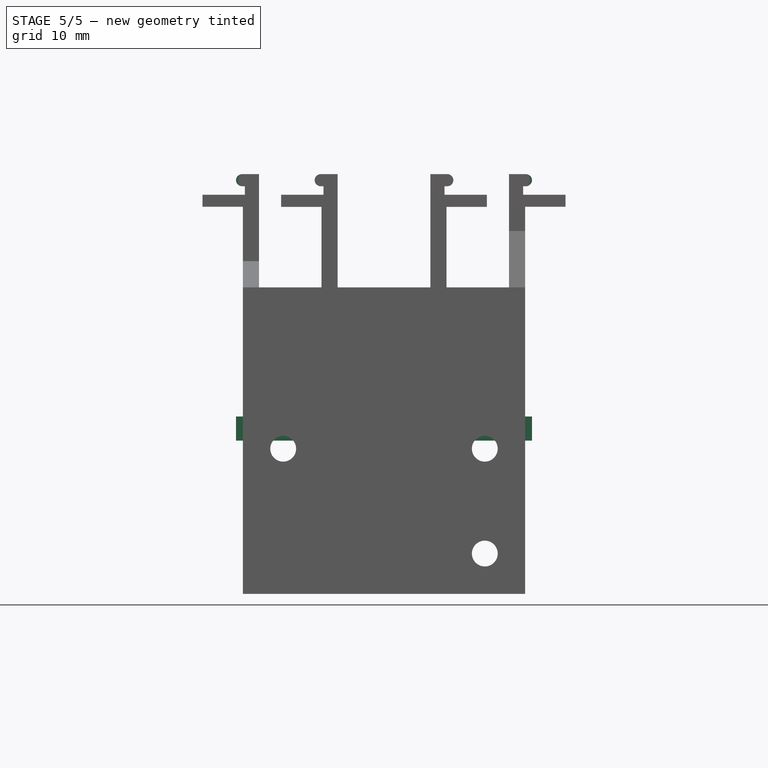
[diagram: stage 5 of 5 — front view after this stage's code; geometry added in this stage tinted green]
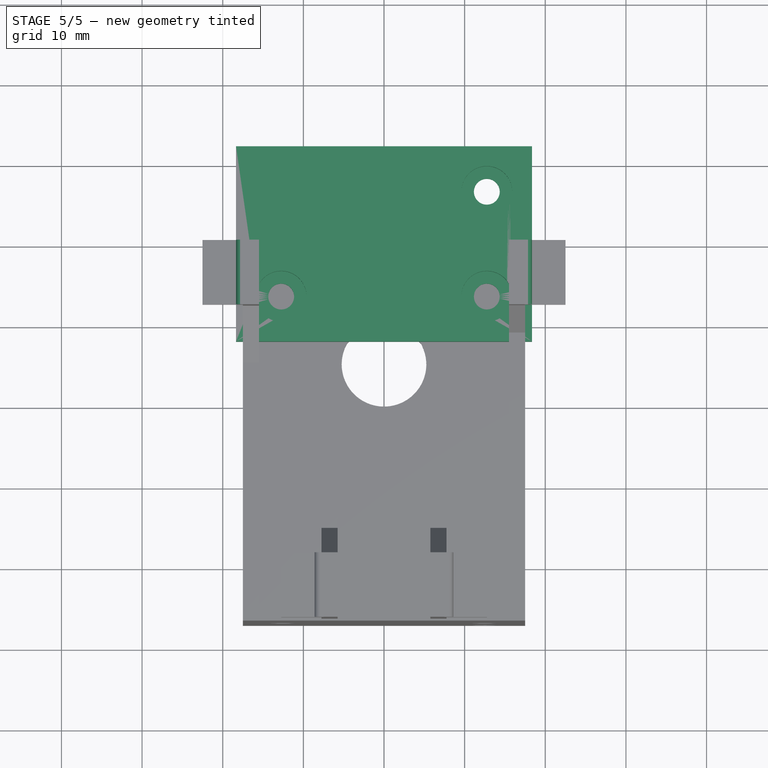
[diagram: stage 5 of 5 — top view after this stage's code; geometry added in this stage tinted green]
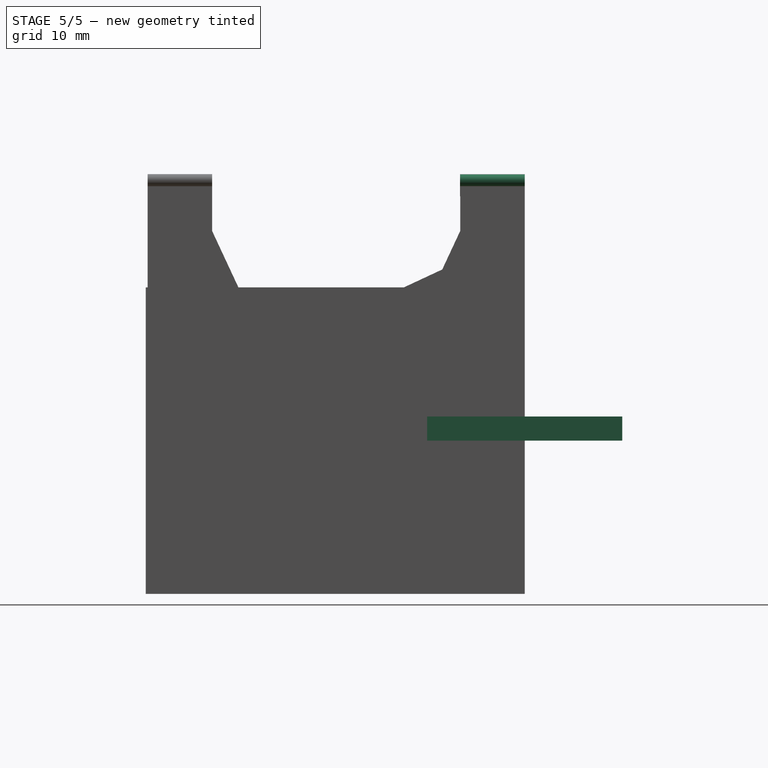
[diagram: stage 5 of 5 — right view after this stage's code; geometry added in this stage tinted green]
FEATURE [Sketcher::SketchObject] Sketch  label="Нижние пластины"
  ArcFitTolerance = 1e-06
  AttachmentSupport = -> [Origin]
  FullyConstrained = false
  MakeInternals = false
  MapMode = 5
  sketch-geometry (16):
    g0: LineSegment StartX=15.5 StartY=24.4798 StartZ=0 EndX=15.5 EndY=16.4798 EndZ=0
    g1: LineSegment StartX=15.5 StartY=16.4798 StartZ=0 EndX=22.5 EndY=16.4798 EndZ=0
    g2: LineSegment StartX=22.5 StartY=16.4798 StartZ=0 EndX=22.5 EndY=24.4798 EndZ=0
    g3: LineSegment StartX=22.5 StartY=24.4798 StartZ=0 EndX=15.5 EndY=24.4798 EndZ=0
    g4: LineSegment StartX=12.75 StartY=-14.2702 StartZ=0 EndX=12.75 EndY=-22.2702 EndZ=0
    g5: LineSegment StartX=12.75 StartY=-22.2702 StartZ=0 EndX=5.75 EndY=-22.2702 EndZ=0
    g6: LineSegment StartX=5.75 StartY=-22.2702 StartZ=0 EndX=5.75 EndY=-14.2702 EndZ=0
    g7: LineSegment StartX=5.75 StartY=-14.2702 StartZ=0 EndX=12.75 EndY=-14.2702 EndZ=0
    g8: LineSegment StartX=-12.75 StartY=-22.2702 StartZ=0 EndX=-12.75 EndY=-14.2702 EndZ=0
    g9: LineSegment StartX=-12.75 StartY=-14.2702 StartZ=0 EndX=-5.75 EndY=-14.2702 EndZ=0
    g10: LineSegment StartX=-5.75 StartY=-14.2702 StartZ=0 EndX=-5.75 EndY=-22.2702 EndZ=0
    g11: LineSegment StartX=-5.75 StartY=-22.2702 StartZ=0 EndX=-12.75 EndY=-22.2702 EndZ=0
    g12: LineSegment StartX=-15.5 StartY=16.4798 StartZ=0 EndX=-15.5 EndY=24.4798 EndZ=0
    g13: LineSegment StartX=-15.5 StartY=24.4798 StartZ=0 EndX=-22.5 EndY=24.4798 EndZ=0
    g14: LineSegment StartX=-22.5 StartY=24.4798 StartZ=0 EndX=-22.5 EndY=16.4798 EndZ=0
    g15: LineSegment StartX=-22.5 StartY=16.4798 StartZ=0 EndX=-15.5 EndY=16.4798 EndZ=0
  constraints (44):
    c: Coincident(g0,g1)
    c: Coincident(g1,g2)
    c: Coincident(g2,g3)
    c: Coincident(g3,g0)
    c: Vertical(g0)
    c: Vertical(g2)
    c: Horizontal(g1)
    c: Horizontal(g3)
    c: Coincident(g4,g5)
    c: Coincident(g5,g6)
    c: Coincident(g6,g7)
    c: Coincident(g7,g4)
    c: Vertical(g4)
    c: Vertical(g6)
    c: Horizontal(g5)
    c: Horizontal(g7)
    c: DistanceY(g5,g2) = 46.75
    c: Coincident(g8,g9)
    c: Coincident(g9,g10)
    c: Coincident(g10,g11)
    c: Coincident(g11,g8)
    c: Vertical(g8)
    c: Horizontal(g9)
    c: Horizontal(g11)
    c: Coincident(g12,g13)
    c: Coincident(g13,g14)
    c: Coincident(g14,g15)
    c: Coincident(g15,g12)
    c: Vertical(g12)
    c: Vertical(g14)
    c: Horizontal(g13)
    c: Horizontal(g15)
    c: Symmetric(g13,g2,g-2)
    c: Symmetric(g10,g5,g-2)
    c: Symmetric(g6,g9,g-2)
    c: Equal(g7,g9)
    c: Equal(g7,g13)
    c: Equal(g7,g3)
    c: Equal(g0,g4)
    c: Equal(g8,g12)
    c: DistanceX(g13,g2) = 45
    c: DistanceX(g13,g13) = 7
    c: DistanceX(g8,g4) = 25.5
    c: DistanceY(g14,g14) = 8
FEATURE [Sketcher::SketchObject] Sketch002  label="Верхние защёлки 01"
  ArcFitTolerance = 1e-06
  FullyConstrained = true
  MakeInternals = false
  MapMode = 5
  Placement = pos=(0,-22.2702,0) rot=(1,0,0;1.5708rad)
  sketch-geometry (10):
    g0: LineSegment StartX=-7.5 StartY=1.5 StartZ=0 EndX=-7.5 EndY=2.75 EndZ=0
    g1: LineSegment StartX=-7.5 StartY=4.25 StartZ=0 EndX=-5.75 EndY=4.25 EndZ=0
    g2: LineSegment StartX=-5.75 StartY=4.25 StartZ=0 EndX=-5.75 EndY=1.5 EndZ=0
    g3: LineSegment StartX=-5.75 StartY=1.5 StartZ=0 EndX=-7.5 EndY=1.5 EndZ=0
    g4: LineSegment StartX=5.75 StartY=1.5 StartZ=0 EndX=5.75 EndY=4.25 EndZ=0
    g5: LineSegment StartX=5.75 StartY=4.25 StartZ=0 EndX=7.5 EndY=4.25 EndZ=0
    g6: LineSegment StartX=7.5 StartY=2.75 StartZ=0 EndX=7.5 EndY=1.5 EndZ=0
    g7: LineSegment StartX=7.5 StartY=1.5 StartZ=0 EndX=5.75 EndY=1.5 EndZ=0
    g8: ArcOfCircle CenterX=-7.5 CenterY=3.5 CenterZ=0 NormalX=0 NormalY=0 NormalZ=1 AngleXU=0 Radius=0.75 StartAngle=1.5708 EndAngle=4.71239
    g9: ArcOfCircle CenterX=7.5 CenterY=3.5 CenterZ=0 NormalX=0 NormalY=0 NormalZ=1 AngleXU=0 Radius=0.75 StartAngle=4.71239 EndAngle=7.85398
  constraints (31):
    c: PointOnObject(g0,g-3)
    c: Coincident(g1,g2)
    c: Coincident(g2,g-3)
    c: Coincident(g2,g3)
    c: Coincident(g3,g0)
    c: Coincident(g-4,g4)
    c: Vertical(g4)
    c: Coincident(g4,g5)
    c: PointOnObject(g6,g-4)
    c: Coincident(g6,g7)
    c: Coincident(g7,g4)
    c: Horizontal(g1)
    c: Vertical(g2)
    c: Horizontal(g5)
    c: Equal(g5,g1)
    c: Equal(g4,g2)
    c: Distance(g1,g1) = 1.75  'l2'
    c: Radius(g8) = 0.75
    c: Vertical(g0)
    c: PointOnObject(g8,g0)
    c: Coincident(g8,g0)
    c: DistanceY(g2,g2) = 2.75  'l1'
    c: Coincident(g8,g1)
    c: Vertical(g8,g1)
    c: Coincident(g9,g5)
    c: Vertical(g6)
    c: PointOnObject(g9,g6)
    c: Coincident(g6,g9)
    c: Equal(g8,g9)
    c: Equal(g7,g5)
    c: DistanceY(g6,g6) = 1.25
FEATURE [Sketcher::SketchObject] Sketch003  label="Верхние защёлки 02"
  ArcFitTolerance = 1e-06
  FullyConstrained = true
  MakeInternals = false
  MapMode = 5
  Placement = pos=(0,16.4798,0) rot=(1,0,0;1.5708rad)
  expr: Constraints[16] = Sketch002.Constraints.l1
  expr: Constraints[17] = Sketch002.Constraints.l2
  sketch-geometry (10):
    g0: LineSegment StartX=-17.25 StartY=1.5 StartZ=0 EndX=-17.25 EndY=2.75 EndZ=0
    g1: LineSegment StartX=-17.25 StartY=4.25 StartZ=0 EndX=-15.5 EndY=4.25 EndZ=0
    g2: LineSegment StartX=-15.5 StartY=4.25 StartZ=0 EndX=-15.5 EndY=1.5 EndZ=0
    g3: LineSegment StartX=-15.5 StartY=1.5 StartZ=0 EndX=-17.25 EndY=1.5 EndZ=0
    g4: LineSegment StartX=15.5 StartY=1.5 StartZ=0 EndX=15.5 EndY=4.25 EndZ=0
    g5: LineSegment StartX=15.5 StartY=4.25 StartZ=0 EndX=17.25 EndY=4.25 EndZ=0
    g6: LineSegment StartX=17.25 StartY=2.75 StartZ=0 EndX=17.25 EndY=1.5 EndZ=0
    g7: LineSegment StartX=17.25 StartY=1.5 StartZ=0 EndX=15.5 EndY=1.5 EndZ=0
    g8: ArcOfCircle CenterX=-17.25 CenterY=3.5 CenterZ=0 NormalX=0 NormalY=0 NormalZ=1 AngleXU=0 Radius=0.75 StartAngle=1.5708 EndAngle=4.71239
    g9: ArcOfCircle CenterX=17.25 CenterY=3.5 CenterZ=0 NormalX=0 NormalY=0 NormalZ=1 AngleXU=0 Radius=0.75 StartAngle=4.71239 EndAngle=7.85398
  constraints (30):
    c: PointOnObject(g0,g-3)
    c: Horizontal(g1)
    c: Coincident(g1,g2)
    c: Coincident(g2,g-3)
    c: Coincident(g2,g3)
    c: Coincident(g3,g0)
    c: Coincident(g-4,g4)
    c: Coincident(g4,g5)
    c: PointOnObject(g6,g-4)
    c: Coincident(g6,g7)
    c: Coincident(g7,g4)
    c: Vertical(g2)
    c: Horizontal(g5)
    c: Vertical(g4)
    c: Equal(g5,g1)
    c: Equal(g2,g4)
    c: DistanceY(g2,g2) = 2.75
    c: DistanceX(g1,g1) = 1.75
    c: Coincident(g9,g5)
    c: Vertical(g0)
    c: PointOnObject(g8,g0)
    c: Coincident(g8,g0)
    c: Vertical(g6)
    c: PointOnObject(g9,g6)
    c: Coincident(g9,g6)
    c: Equal(g9,g8)
    c: Coincident(g1,g8)
    c: Equal(g1,g3)
    c: Radius(g8) = 0.75
    c: Equal(g7,g5)
FEATURE [PartDesign::Body] Body  label="Крепление в принтер (Замеры)"
  AllowCompound = false
  Group = -> [Sketch,Sketch002,Sketch003]
  Origin = -> Origin
  Placement = pos=(0,-24.5,24.5) rot=(0,0,1;0rad)
FEATURE [Sketcher::SketchObject] Sketch004
  ArcFitTolerance = 1e-06
  AttachmentSupport = -> [XY_Plane001]
  FullyConstrained = true
  MakeInternals = false
  MapMode = 5
  sketch-geometry (14):
    g0: LineSegment StartX=-18.35 StartY=12.1 StartZ=0 EndX=-18.35 EndY=-12.1 EndZ=0
    g1: LineSegment StartX=-18.35 StartY=-12.1 StartZ=0 EndX=18.35 EndY=-12.1 EndZ=0
    g2: LineSegment StartX=18.35 StartY=-12.1 StartZ=0 EndX=18.35 EndY=12.1 EndZ=0
    g3: LineSegment StartX=18.35 StartY=12.1 StartZ=0 EndX=-18.35 EndY=12.1 EndZ=0
    g4: Circle CenterX=12.75 CenterY=6.5 CenterZ=0 NormalX=0 NormalY=0 NormalZ=1 AngleXU=0 Radius=1.6
    g5: Circle CenterX=12.75 CenterY=-6.5 CenterZ=0 NormalX=0 NormalY=0 NormalZ=1 AngleXU=0 Radius=1.6
    g6: Circle CenterX=-12.75 CenterY=-6.5 CenterZ=0 NormalX=0 NormalY=0 NormalZ=1 AngleXU=0 Radius=1.6
    g7: GeomPoint [constr] X=12.75 Y=-4.9 Z=0
    g8: GeomPoint [constr] X=11.15 Y=-6.5 Z=0
    g9: GeomPoint [constr] X=-11.15 Y=-6.5 Z=0
    g10: GeomPoint [constr] X=12.75 Y=4.9 Z=0
    g11: LineSegment [constr] StartX=-14.1754 StartY=-7.2267 StartZ=0 EndX=14.1754 EndY=7.2267 EndZ=0
    g12: GeomPoint [constr] X=-11.3246 Y=-5.7733 Z=0
    g13: GeomPoint [constr] X=11.3246 Y=5.7733 Z=0
  constraints (37):
    c: Coincident(g0,g1)
    c: Coincident(g1,g2)
    c: Coincident(g2,g3)
    c: Coincident(g3,g0)
    c: Vertical(g0)
    c: Vertical(g2)
    c: Horizontal(g1)
    c: Horizontal(g3)
    c: Equal(g6,g5)
    c: Equal(g5,g4)
    c: Symmetric(g0,g2,g-1)
    c: PointOnObject(g7,g5)
    c: PointOnObject(g8,g5)
    c: PointOnObject(g9,g6)
    c: DistanceX(g9,g8) = 22.3
    c: Diameter(g6) = 3.2
    c: Horizontal(g6,g9)
    c: Horizontal(g8,g5)
    c: Vertical(g5,g7)
    c: PointOnObject(g10,g4)
    c: Vertical(g10,g4)
    c: DistanceY(g7,g10) = 9.8
    c: Vertical(g7,g10)
    c: PointOnObject(g4,g11)
    c: PointOnObject(g6,g11)
    c: PointOnObject(g13,g11)
    c: PointOnObject(g13,g4)
    c: PointOnObject(g12,g11)
    c: PointOnObject(g12,g6)
    c: Distance(g12,g13) = 25.4225
    c: Horizontal(g8,g9)
    c: PointOnObject(g11,g4)
    c: PointOnObject(g11,g6)
    c: PointOnObject(g-1,g11)
    c: Distance(g6,g1) = 4
    c: Distance(g6,g0) = 4
    c: Distance(g4,g3) = 4
FEATURE [PartDesign::Pad] Pad  label="Отверстия"
  Direction = (0,0,1)
  Length = 1
  Length2 = 10
  Profile = -> Sketch004
  ReferenceAxis = -> Sketch004 [N_Axis]
  Refine = true
  Suppressed = false
  Type = 0
FEATURE [Sketcher::SketchObject] Sketch005
  ArcFitTolerance = 1e-06
  AttachmentSupport = -> [Pad]
  ExternalGeometry = -> [Pad]
  FullyConstrained = true
  MakeInternals = false
  MapMode = 5
  Placement = pos=(0,0,1) rot=(0,0,1;0rad)
  sketch-geometry (7):
    g0: Circle CenterX=-12.75 CenterY=-6.5 CenterZ=0 NormalX=0 NormalY=0 NormalZ=1 AngleXU=0 Radius=3.15
    g1: Circle CenterX=12.75 CenterY=-6.5 CenterZ=0 NormalX=0 NormalY=0 NormalZ=1 AngleXU=0 Radius=3.15
    g2: Circle CenterX=12.75 CenterY=6.5 CenterZ=0 NormalX=0 NormalY=0 NormalZ=1 AngleXU=0 Radius=3.15
    g3: LineSegment StartX=-18.35 StartY=12.1 StartZ=0 EndX=-18.35 EndY=-12.1 EndZ=0
    g4: LineSegment StartX=-18.35 StartY=-12.1 StartZ=0 EndX=18.35 EndY=-12.1 EndZ=0
    g5: LineSegment StartX=18.35 StartY=-12.1 StartZ=0 EndX=18.35 EndY=12.1 EndZ=0
    g6: LineSegment StartX=18.35 StartY=12.1 StartZ=0 EndX=-18.35 EndY=12.1 EndZ=0
  constraints (16):
    c: Coincident(g0,g-3)
    c: Coincident(g1,g-5)
    c: Coincident(g2,g-4)
    c: Diameter(g0) = 6.3
    c: Equal(g0,g1)
    c: Equal(g1,g2)
    c: Coincident(g3,g4)
    c: Coincident(g4,g5)
    c: Coincident(g5,g6)
    c: Coincident(g6,g3)
    c: Vertical(g3)
    c: Vertical(g5)
    c: Horizontal(g4)
    c: Horizontal(g6)
    c: Coincident(g3,g-7)
    c: Coincident(g4,g-9)
FEATURE [PartDesign::Pad] Pad001  label="Зинковка"
  BaseFeature = -> Pad
  Direction = (0,0,1)
  Length = 2
  Length2 = 10
  Profile = -> Sketch005
  ReferenceAxis = -> Sketch005 [N_Axis]
  Refine = true
  Suppressed = false
  Type = 0
FEATURE [Sketcher::SketchObject] Sketch019
  ArcFitTolerance = 1e-06
  AttachmentSupport = -> [Pad013]
  ExternalGeometry = -> [Pad013]
  FullyConstrained = true
  MakeInternals = false
  MapMode = 5
  Placement = pos=(2e-15,-8,-1.8e-15) rot=(1,0,0;1.5708rad)
  sketch-geometry (7):
    g0: ArcOfCircle CenterX=-17.6 CenterY=32.3 CenterZ=0 NormalX=0 NormalY=0 NormalZ=1 AngleXU=0 Radius=0.75 StartAngle=1.5708 EndAngle=4.71239
    g1: LineSegment StartX=-17.6 StartY=33.05 StartZ=0 EndX=-17.25 EndY=33.05 EndZ=0
    g2: LineSegment StartX=-17.25 StartY=33.05 StartZ=0 EndX=-15.5 EndY=33.05 EndZ=0
    g3: LineSegment StartX=-15.5 StartY=33.05 StartZ=0 EndX=-15.5 EndY=30.3 EndZ=0
    g4: LineSegment StartX=-15.5 StartY=30.3 StartZ=0 EndX=-17.25 EndY=30.3 EndZ=0
    g5: LineSegment StartX=-17.25 StartY=30.3 StartZ=0 EndX=-17.25 EndY=31.55 EndZ=0
    g6: LineSegment StartX=-17.25 StartY=31.55 StartZ=0 EndX=-17.6 EndY=31.55 EndZ=0
  constraints (17):
    c: Coincident(g1,g0)
    c: Coincident(g1,g-6)
    c: Coincident(g3,g2)
    c: Coincident(g3,g-7)
    c: Coincident(g4,g3)
    c: Coincident(g4,g-4)
    c: Coincident(g5,g4)
    c: Coincident(g5,g-5)
    c: Coincident(g6,g5)
    c: Coincident(g6,g0)
    c: Horizontal(g6)
    c: Horizontal(g1)
    c: Vertical(g0,g0)
    c: Vertical(g0,g0)
    c: Coincident(g2,g1)
    c: DistanceX(g1,g1) = 0.35
    c: Coincident(g2,g-7)
FEATURE [PartDesign::Pad] Pad015
  BaseFeature = -> Pocket001
  Direction = (0,-1,2e-16)
  Length = 10
  Length2 = 10
  Placement = pos=(0,0,0) rot=(1,0,0;1.5708rad)
  Profile = -> Sketch019
  ReferenceAxis = -> Sketch019 [N_Axis]
  Refine = true
  Reversed = true
  Suppressed = false
  Type = 3
  UpToFace = -> Pocket001 [Face35]
FEATURE [PartDesign::Mirrored] Mirrored001
  BaseFeature = -> Pad015
  MirrorPlane = -> YZ_Plane003
  Originals = -> [Pad015]
  Placement = pos=(0,0,0) rot=(1,0,0;1.5708rad)
  Refine = true
  Suppressed = false
  TransformMode = 0
FEATURE [PartDesign::Body] Body003  label="Тело"
  AllowCompound = false
  Group = -> [Sketch007,Pad002,Pad003,Sketch008,Sketch011,Pad006,DatumPlane,Sketch012,Pad007,Sketch013,Pad008,Pad009,Sketch014,Pad010,Mirrored,Sketch015,Pad011,Sketch016,Pad012,Binder,Pad013,Binder001,Sketch017,Pad014,Binder002,Pocket,Chamfer,Sketch018,Pocket001,Sketch019,Pad015,Mirrored001]
  Origin = -> Origin003
  Tip = -> Mirrored001
FEATURE [PartDesign::Body] Body004  label="Тело001"
  AllowCompound = false
  Origin = -> Origin006
FEATURE [Measure::MeasureLength] Length  label="Length: 10,00 mm"
  Elements = -> [Body003]
  Length = 10
FEATURE [App::DocumentObjectGroup] Measurements
  Group = -> [Length]
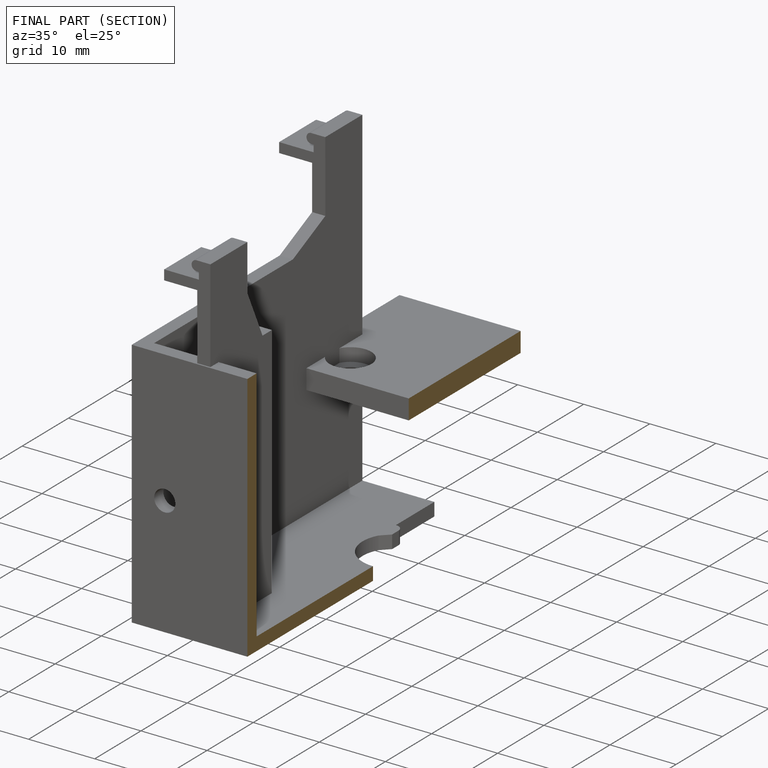
[diagram: finished part — half-section view (interior)]
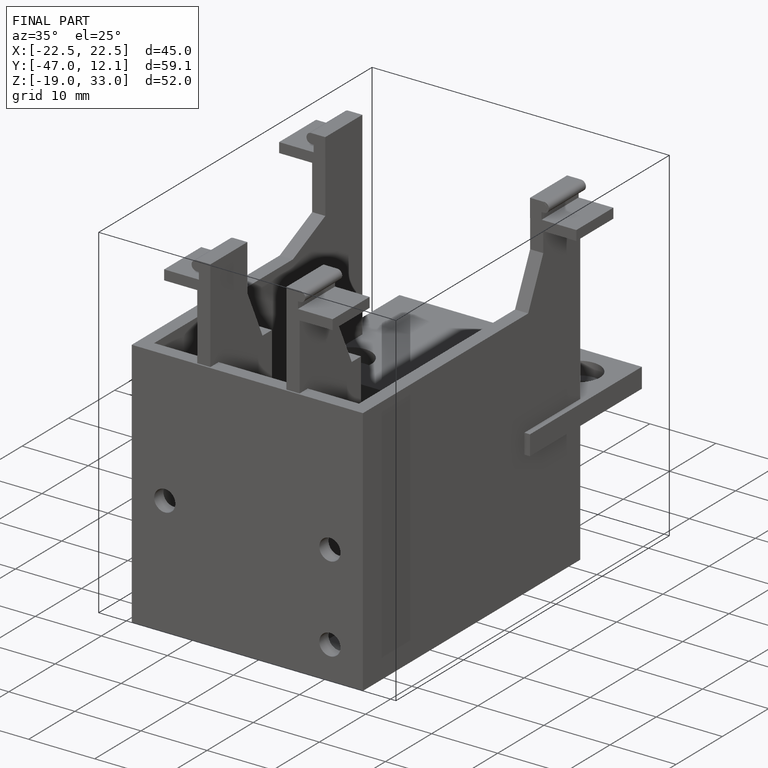
[diagram: finished part — iso view with bounding-box wireframe]
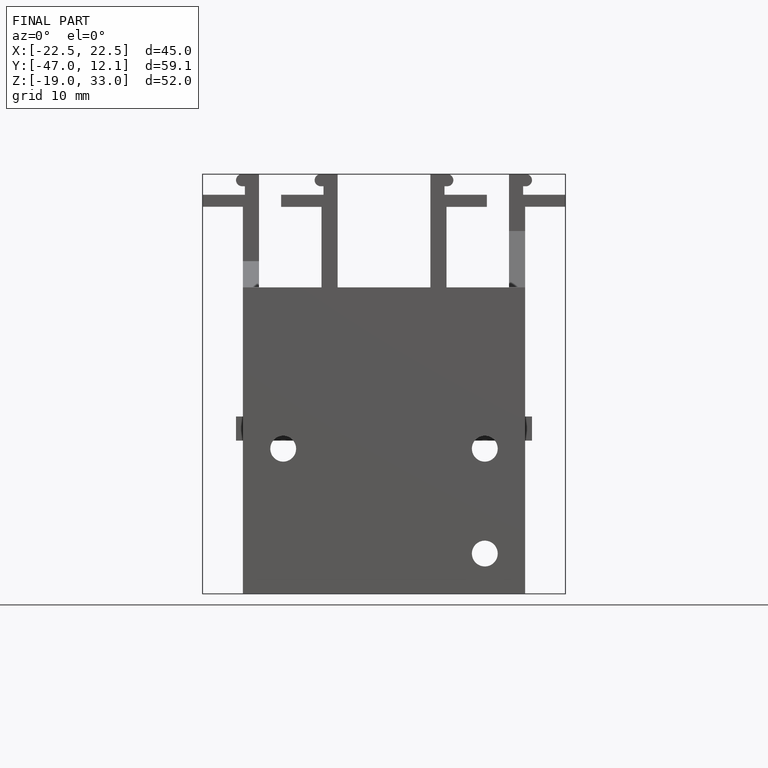
[diagram: finished part — front view with bounding-box wireframe]
